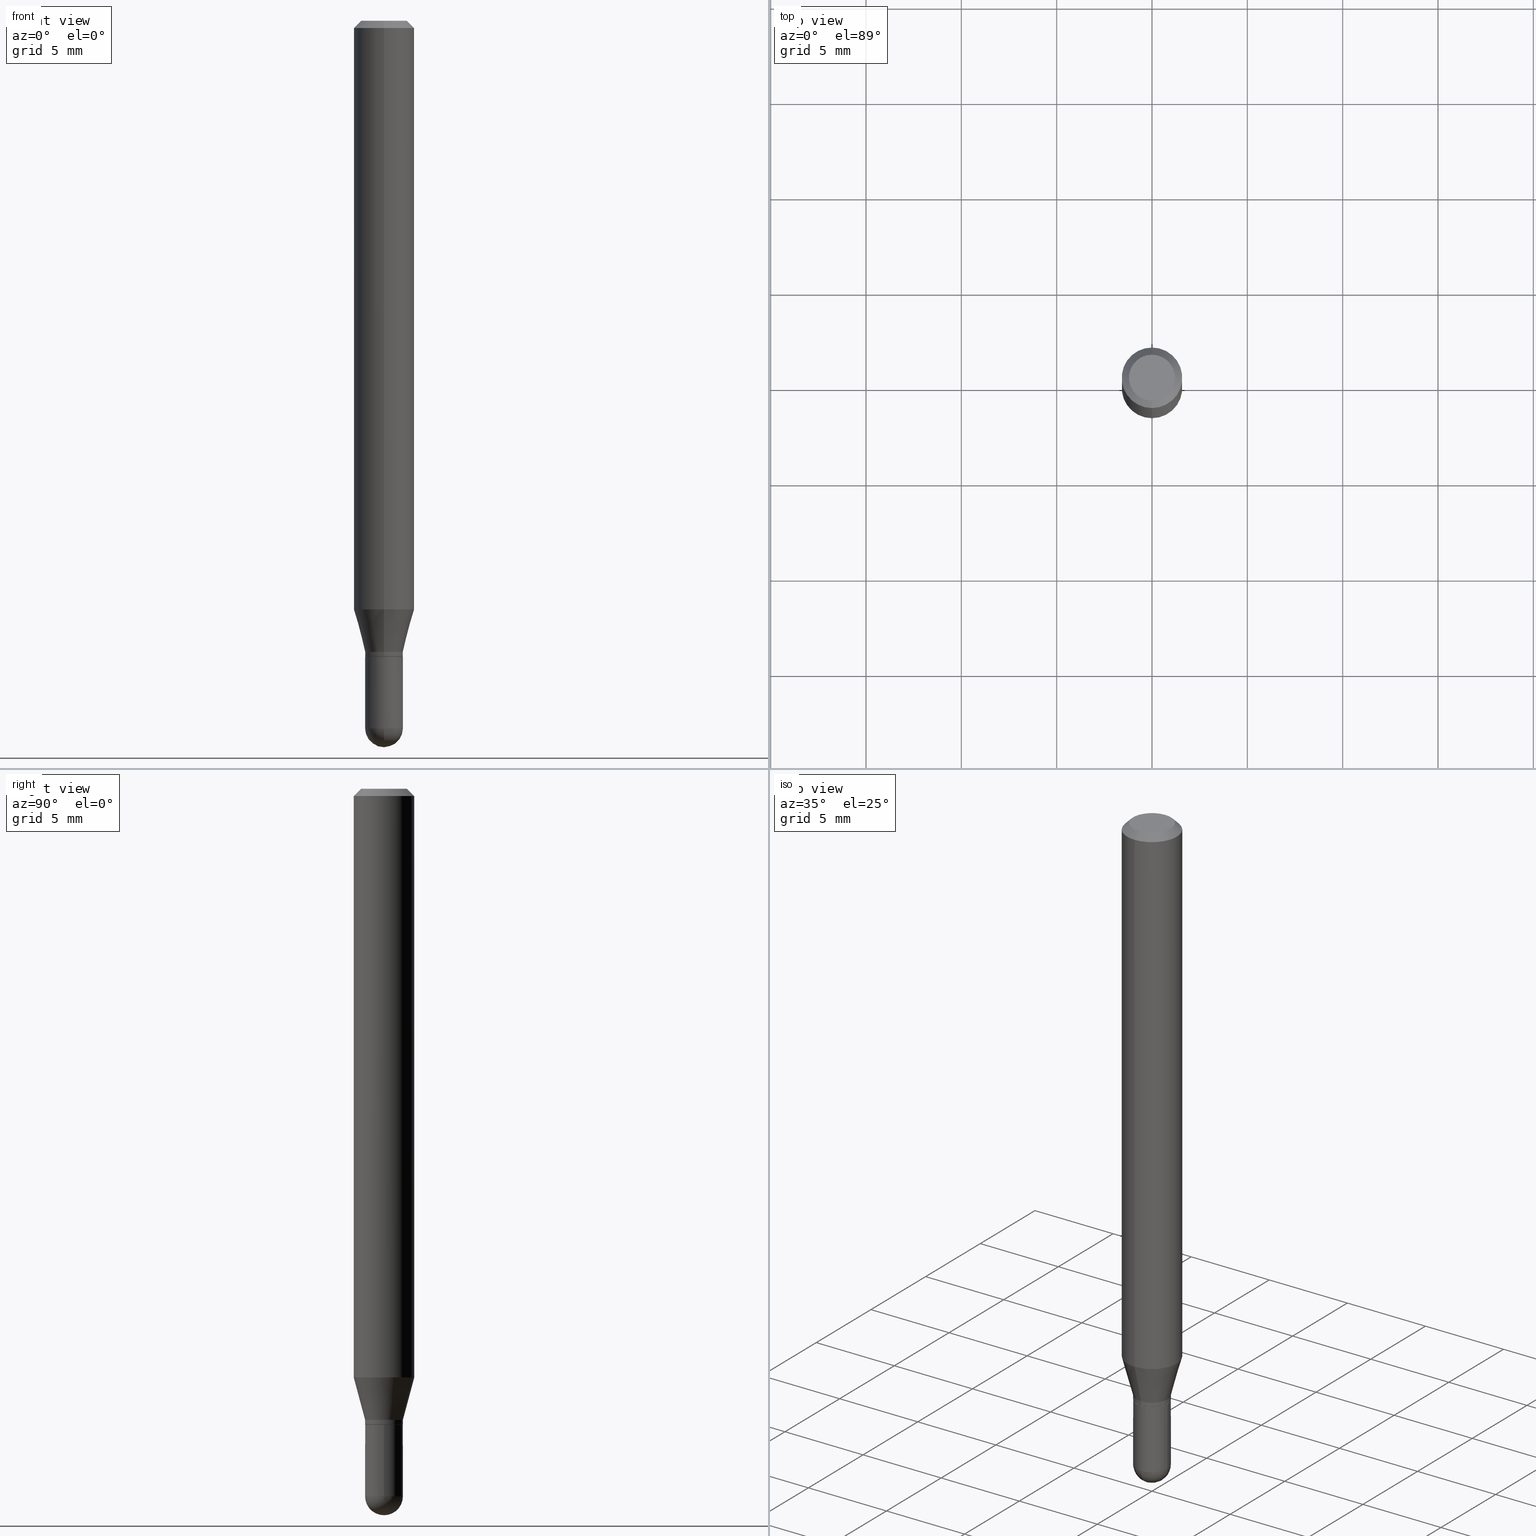
[diagram: canonical four-view strip — front | top / right | iso, engineering-drawing reading convention]
A machine part, canonical four-view strip (front | top / right | iso — engineering-drawing reading convention). The complete STEP part file that produces these views, byte-faithful:
ISO-10303-21;
HEADER;
FILE_DESCRIPTION (( 'STEP AP203' ),
    '1' );
FILE_NAME ('30035.STEP',
    '2024-03-08T15:16:37',
    ( '' ),
    ( '' ),
    'SwSTEP 2.0',
    'SolidWorks 2023',
    '' );
FILE_SCHEMA (( 'CONFIG_CONTROL_DESIGN' ));
ENDSEC;

DATA;
#1 = APPROVAL_PERSON_ORGANIZATION ( #248, #194, #250 ) ;
#2 = LINE ( 'NONE', #89, #34 ) ;
#3 = DIRECTION ( 'NONE',  ( 6.982962677686266711E-15, 1.000000000000000000, 0.000000000000000000 ) ) ;
#4 = DIRECTION ( 'NONE',  ( -6.982962677686265133E-15, -1.000000000000000000, 0.000000000000000000 ) ) ;
#5 = CARTESIAN_POINT ( 'NONE',  ( -2.726846925636162763E-16, -0.03905000000000447002, -1.302999999999999936 ) ) ;
#6 = ADVANCED_FACE ( 'NONE', ( #418 ), #76, .T. ) ;
#7 = ORIENTED_EDGE ( 'NONE', *, *, #81, .F. ) ;
#8 = DIRECTION ( 'NONE',  ( 4.937700262164548042E-15, 0.7071067811865451302, -0.7071067811865499042 ) ) ;
#9 = AXIS2_PLACEMENT_3D ( 'NONE', #395, #201, #356 ) ;
#10 = CLOSED_SHELL ( 'NONE', ( #318, #252, #365, #281, #259, #6, #501, #41, #337, #341, #260, #25 ) ) ;
#11 = APPROVAL ( #331, 'UNSPECIFIED' ) ;
#12 = ORIENTED_EDGE ( 'NONE', *, *, #104, .T. ) ;
#13 = DATE_AND_TIME ( #182, #58 ) ;
#14 = VERTEX_POINT ( 'NONE', #400 ) ;
#15 = PERSON_AND_ORGANIZATION_ROLE ( 'creator' ) ;
#16 = EDGE_LOOP ( 'NONE', ( #271, #440 ) ) ;
#17 = COORDINATED_UNIVERSAL_TIME_OFFSET ( 5, 0, .BEHIND. ) ;
#18 = APPROVAL_PERSON_ORGANIZATION ( #138, #168, #55 ) ;
#19 = ORIENTED_EDGE ( 'NONE', *, *, #108, .T. ) ;
#20 = COORDINATED_UNIVERSAL_TIME_OFFSET ( 5, 0, .BEHIND. ) ;
#21 = EDGE_LOOP ( 'NONE', ( #140, #377, #352, #110, #145 ) ) ;
#22 = EDGE_CURVE ( 'NONE', #217, #14, #111, .T. ) ;
#23 = DIRECTION ( 'NONE',  ( -2.445435285253421028E-29, 3.491529342725254773E-15, 1.000000000000000000 ) ) ;
#24 = EDGE_LOOP ( 'NONE', ( #239, #12, #258, #338 ) ) ;
#25 = ADVANCED_FACE ( 'NONE', ( #196 ), #391, .T. ) ;
#26 = DIRECTION ( 'NONE',  ( -6.982962677686266711E-15, -1.000000000000000000, 3.491529342725255562E-15 ) ) ;
#27 = AXIS2_PLACEMENT_3D ( 'NONE', #160, #238, #3 ) ;
#28 = VECTOR ( 'NONE', #227, 39.37007874015748143 ) ;
#29 = CARTESIAN_POINT ( 'NONE',  ( 3.186402176685208399E-29, -4.549462733571007534E-15, -1.302999999999999936 ) ) ;
#30 = CARTESIAN_POINT ( 'NONE',  ( 0.000000000000000000, 0.000000000000000000, 0.000000000000000000 ) ) ;
#31 = ADVANCED_BREP_SHAPE_REPRESENTATION ( '30035', ( #496, #332, #75 ), #237 ) ;
#32 = CC_DESIGN_DATE_AND_TIME_ASSIGNMENT ( #442, #103, ( #325 ) ) ;
#33 = CARTESIAN_POINT ( 'NONE',  ( 4.440892098500920012E-16, 0.06249999999999572564, -1.215483408562509915 ) ) ;
#34 = VECTOR ( 'NONE', #48, 39.37007874015748143 ) ;
#35 = DIRECTION ( 'NONE',  ( -2.445435285253421308E-29, 3.491529342725255167E-15, 1.000000000000000000 ) ) ;
#36 = VECTOR ( 'NONE', #355, 39.37007874015748143 ) ;
#37 = DIRECTION ( 'NONE',  ( -6.982962677686265133E-15, -1.000000000000000000, 0.000000000000000000 ) ) ;
#38 = ORIENTED_EDGE ( 'NONE', *, *, #274, .T. ) ;
#39 = CARTESIAN_POINT ( 'NONE',  ( 3.569368228036930558E-29, -5.105661907733563837E-15, -1.460950000000000193 ) ) ;
#40 = CARTESIAN_POINT ( 'NONE',  ( 3.668152927880133994E-31, -5.237294014087885586E-17, -0.01500000000000000812 ) ) ;
#41 = ADVANCED_FACE ( 'NONE', ( #235 ), #124, .T. ) ;
#42 = ORIENTED_EDGE ( 'NONE', *, *, #99, .F. ) ;
#43 = CARTESIAN_POINT ( 'NONE',  ( 3.569368228036930558E-29, -5.105661907733563837E-15, -1.460950000000000193 ) ) ;
#44 = CYLINDRICAL_SURFACE ( 'NONE', #301, 0.03905000000000000832 ) ;
#45 = EDGE_LOOP ( 'NONE', ( #209, #396, #105, #354 ) ) ;
#46 = DIRECTION ( 'NONE',  ( 6.982962677686265922E-15, 1.000000000000000000, -3.483106191921935554E-15 ) ) ;
#47 = AXIS2_PLACEMENT_3D ( 'NONE', #305, #116, #422 ) ;
#48 = DIRECTION ( 'NONE',  ( -2.445435285253421308E-29, 3.491529342725254773E-15, 1.000000000000000000 ) ) ;
#49 = ORIENTED_EDGE ( 'NONE', *, *, #485, .T. ) ;
#50 = DIRECTION ( 'NONE',  ( -6.982962677686265133E-15, -1.000000000000000000, 3.491529342725254773E-15 ) ) ;
#51 = EDGE_CURVE ( 'NONE', #371, #87, #245, .T. ) ;
#52 = CARTESIAN_POINT ( 'NONE',  ( 2.726846925636807657E-16, 0.03904999999999541477, -1.313000000000000167 ) ) ;
#53 = LINE ( 'NONE', #202, #36 ) ;
#54 = EDGE_CURVE ( 'NONE', #411, #137, #285, .T. ) ;
#55 = APPROVAL_ROLE ( '' ) ;
#56 = ORIENTED_EDGE ( 'NONE', *, *, #511, .T. ) ;
#57 = AXIS2_PLACEMENT_3D ( 'NONE', #149, #221, #502 ) ;
#58 = LOCAL_TIME ( 10, 16, 37.00000000000000000, #20 ) ;
#59 = AXIS2_PLACEMENT_3D ( 'NONE', #134, #284, #438 ) ;
#60 = APPLICATION_CONTEXT ( 'configuration controlled 3d designs of mechanical parts and assemblies' ) ;
#61 = EDGE_LOOP ( 'NONE', ( #19, #297, #177, #249 ) ) ;
#62 = APPROVAL_STATUS ( 'not_yet_approved' ) ;
#63 = ORIENTED_EDGE ( 'NONE', *, *, #157, .F. ) ;
#64 = PERSON_AND_ORGANIZATION_ROLE ( 'creator' ) ;
#65 = EDGE_LOOP ( 'NONE', ( #415, #219, #243, #333 ) ) ;
#66 = PERSON_AND_ORGANIZATION ( #115, #315 ) ;
#67 = CIRCLE ( 'NONE', #406, 0.03905000000000000832 ) ;
#68 = VERTEX_POINT ( 'NONE', #353 ) ;
#69 = CIRCLE ( 'NONE', #222, 0.03905000000000000832 ) ;
#70 = CARTESIAN_POINT ( 'NONE',  ( 3.210856529537742007E-29, -4.584378026998260520E-15, -1.313000000000000167 ) ) ;
#71 = DIRECTION ( 'NONE',  ( -6.982962677686265133E-15, -1.000000000000000000, 0.000000000000000000 ) ) ;
#72 = DIRECTION ( 'NONE',  ( -1.807323732225327773E-15, -0.2588190451025178529, 0.9659258262890690894 ) ) ;
#73 = DIRECTION ( 'NONE',  ( -2.445435285253421308E-29, 3.491529342725255167E-15, 1.000000000000000000 ) ) ;
#74 = CARTESIAN_POINT ( 'NONE',  ( -0.03905000000000000832, 2.774669383143191817E-16, -1.920844152744540988E-30 ) ) ;
#75 = AXIS2_PLACEMENT_3D ( 'NONE', #289, #213, #180 ) ;
#76 = CONICAL_SURFACE ( 'NONE', #185, 0.03904999999999992505, 0.2617993877991499074 ) ;
#77 = CARTESIAN_POINT ( 'NONE',  ( -2.726846925636169666E-16, -0.03905000000000464350, -1.312500000000000222 ) ) ;
#78 = FACE_OUTER_BOUND ( 'NONE', #443, .T. ) ;
#79 = CIRCLE ( 'NONE', #458, 0.06250000000000000000 ) ;
#80 = DIRECTION ( 'NONE',  ( 2.445435285253421308E-29, -3.491529342725255167E-15, -1.000000000000000000 ) ) ;
#81 = EDGE_CURVE ( 'NONE', #68, #430, #69, .T. ) ;
#82 = AXIS2_PLACEMENT_3D ( 'NONE', #218, #347, #114 ) ;
#83 = CARTESIAN_POINT ( 'NONE',  ( -0.03905000000000000138, -4.565130391627653569E-15, -1.313000000000000167 ) ) ;
#84 = CARTESIAN_POINT ( 'NONE',  ( 2.972386015938861663E-29, -4.243895986591712384E-15, -1.215483408562509693 ) ) ;
#85 = PLANE ( 'NONE',  #270 ) ;
#86 = EDGE_CURVE ( 'NONE', #166, #454, #294, .T. ) ;
#87 = VERTEX_POINT ( 'NONE', #426 ) ;
#88 = DIRECTION ( 'NONE',  ( -7.105427357601000281E-15, -1.000000000000000000, 0.000000000000000000 ) ) ;
#89 = CARTESIAN_POINT ( 'NONE',  ( -2.726846925636481266E-16, -0.03904999999999992505, 1.363442208334209384E-16 ) ) ;
#90 = SECURITY_CLASSIFICATION ( '', '', #136 ) ;
#91 = ORIENTED_EDGE ( 'NONE', *, *, #403, .F. ) ;
#92 = DIRECTION ( 'NONE',  ( -1.000000000000000000, 7.105427357601001070E-15, -4.926315508542082329E-29 ) ) ;
#93 = ORIENTED_EDGE ( 'NONE', *, *, #346, .T. ) ;
#94 = COORDINATED_UNIVERSAL_TIME_OFFSET ( 5, 0, .BEHIND. ) ;
#95 = ORIENTED_EDGE ( 'NONE', *, *, #152, .F. ) ;
#96 = CONICAL_SURFACE ( 'NONE', #405, 0.03904999999999992505, 0.2617993877991499074 ) ;
#97 = CC_DESIGN_APPROVAL ( #11, ( #90 ) ) ;
#98 = DATE_AND_TIME ( #373, #427 ) ;
#99 = EDGE_CURVE ( 'NONE', #411, #447, #433, .T. ) ;
#100 = VECTOR ( 'NONE', #477, 39.37007874015748143 ) ;
#101 = ORIENTED_EDGE ( 'NONE', *, *, #410, .F. ) ;
#102 = UNCERTAINTY_MEASURE_WITH_UNIT (LENGTH_MEASURE( 1.000000000000000082E-05 ), #414, 'distance_accuracy_value', 'NONE');
#103 = DATE_TIME_ROLE ( 'creation_date' ) ;
#104 = EDGE_CURVE ( 'NONE', #328, #296, #279, .T. ) ;
#105 = ORIENTED_EDGE ( 'NONE', *, *, #470, .T. ) ;
#106 = DATE_AND_TIME ( #335, #498 ) ;
#107 = EDGE_LOOP ( 'NONE', ( #367, #49, #7, #330 ) ) ;
#108 = EDGE_CURVE ( 'NONE', #254, #244, #272, .T. ) ;
#109 = EDGE_CURVE ( 'NONE', #244, #87, #53, .T. ) ;
#110 = ORIENTED_EDGE ( 'NONE', *, *, #283, .T. ) ;
#111 = CIRCLE ( 'NONE', #207, 0.03904999999999998750 ) ;
#112 = CC_DESIGN_PERSON_AND_ORGANIZATION_ASSIGNMENT ( #66, #363, ( #186 ) ) ;
#113 = CARTESIAN_POINT ( 'NONE',  ( 2.756905814749505827E-16, 0.03854999999999541432, -1.313000000000000167 ) ) ;
#114 = DIRECTION ( 'NONE',  ( -6.982962677686265133E-15, -1.000000000000000000, 0.000000000000000000 ) ) ;
#115 = PERSON ( 'UNSPECIFIED', 'UNSPECIFIED', 'UNSPECIFIED', ('UNSPECIFIED'), ('UNSPECIFIED'), ('UNSPECIFIED') ) ;
#116 = DIRECTION ( 'NONE',  ( 2.445435285253421308E-29, -3.491529342725255167E-15, -1.000000000000000000 ) ) ;
#117 = CC_DESIGN_APPROVAL ( #168, ( #325 ) ) ;
#118 = CARTESIAN_POINT ( 'NONE',  ( 4.440892098500924943E-16, 0.06249999999999993755, -0.01500000000000022669 ) ) ;
#119 = PRODUCT ( '30035', '30035', '', ( #409 ) ) ;
#120 = DIRECTION ( 'NONE',  ( -2.445468806185136597E-29, 3.491481338843145583E-15, 1.000000000000000000 ) ) ;
#121 = EDGE_CURVE ( 'NONE', #137, #296, #359, .T. ) ;
#122 = CARTESIAN_POINT ( 'NONE',  ( 3.186402176685208399E-29, -4.549462733571007534E-15, -1.302999999999999936 ) ) ;
#123 = DIRECTION ( 'NONE',  ( -2.445468806185136597E-29, 3.491481338843145583E-15, 1.000000000000000000 ) ) ;
#124 = CONICAL_SURFACE ( 'NONE', #504, 0.06250000000000000000, 0.7853981633974483900 ) ;
#125 = ORIENTED_EDGE ( 'NONE', *, *, #121, .T. ) ;
#126 = FACE_OUTER_BOUND ( 'NONE', #174, .T. ) ;
#127 = AXIS2_PLACEMENT_3D ( 'NONE', #368, #329, #178 ) ;
#128 = DIRECTION ( 'NONE',  ( -6.982962677686265922E-15, -1.000000000000000000, 3.491529342725254773E-15 ) ) ;
#129 = DIRECTION ( 'NONE',  ( -1.000000000000000000, 6.982962677686265922E-15, -4.883557194083112901E-29 ) ) ;
#130 = DIRECTION ( 'NONE',  ( -2.445435285253421308E-29, 3.491529342725255167E-15, 1.000000000000000000 ) ) ;
#131 = DIRECTION ( 'NONE',  ( -2.445468806185136597E-29, 3.491481338843145583E-15, 1.000000000000000000 ) ) ;
#132 = CARTESIAN_POINT ( 'NONE',  ( 0.000000000000000000, 0.000000000000000000, 0.000000000000000000 ) ) ;
#133 = EDGE_CURVE ( 'NONE', #166, #328, #309, .T. ) ;
#134 = CARTESIAN_POINT ( 'NONE',  ( 3.210856529537742007E-29, -4.584378026998260520E-15, -1.313000000000000167 ) ) ;
#135 = DIRECTION ( 'NONE',  ( 6.982962677686265922E-15, 1.000000000000000000, 0.000000000000000000 ) ) ;
#136 = SECURITY_CLASSIFICATION_LEVEL ( 'unclassified' ) ;
#137 = VERTEX_POINT ( 'NONE', #472 ) ;
#138 = PERSON_AND_ORGANIZATION ( #115, #315 ) ;
#139 = ORIENTED_EDGE ( 'NONE', *, *, #226, .F. ) ;
#140 = ORIENTED_EDGE ( 'NONE', *, *, #322, .F. ) ;
#141 = CARTESIAN_POINT ( 'NONE',  ( -0.03905000000000000832, -4.565130391627653569E-15, -1.460950000000000193 ) ) ;
#142 = CALENDAR_DATE ( 2024, 8, 3 ) ;
#143 = CIRCLE ( 'NONE', #127, 0.06250000000000000000 ) ;
#144 = EDGE_LOOP ( 'NONE', ( #183, #56 ) ) ;
#145 = ORIENTED_EDGE ( 'NONE', *, *, #511, .F. ) ;
#146 = ADVANCED_FACE ( 'NONE', ( #126 ), #394, .T. ) ;
#147 = CARTESIAN_POINT ( 'NONE',  ( 3.186402176685208399E-29, -4.549462733571007534E-15, -1.302999999999999936 ) ) ;
#148 = LINE ( 'NONE', #300, #483 ) ;
#149 = CARTESIAN_POINT ( 'NONE',  ( 3.572707652396175485E-29, -5.100879661982893620E-15, -1.460950000000000193 ) ) ;
#150 = VECTOR ( 'NONE', #154, 39.37007874015748143 ) ;
#151 = FACE_OUTER_BOUND ( 'NONE', #486, .T. ) ;
#152 = EDGE_CURVE ( 'NONE', #251, #328, #448, .T. ) ;
#153 = PLANE ( 'NONE',  #205 ) ;
#154 = DIRECTION ( 'NONE',  ( -4.937700262164674260E-15, -0.7071067811865632269, 0.7071067811865319186 ) ) ;
#155 = AXIS2_PLACEMENT_3D ( 'NONE', #236, #478, #37 ) ;
#156 = DIRECTION ( 'NONE',  ( 2.445435285253421028E-29, -3.491529342725254773E-15, -1.000000000000000000 ) ) ;
#157 = EDGE_CURVE ( 'NONE', #454, #251, #148, .T. ) ;
#158 = CARTESIAN_POINT ( 'NONE',  ( 3.572707652396175485E-29, -5.100879661982893620E-15, -1.460950000000000193 ) ) ;
#159 = CARTESIAN_POINT ( 'NONE',  ( 2.774669383143503417E-16, 0.03904999999999537313, -1.302999999999999936 ) ) ;
#160 = CARTESIAN_POINT ( 'NONE',  ( 3.569368228036930558E-29, -5.105661907733563837E-15, -1.460950000000000193 ) ) ;
#161 = AXIS2_PLACEMENT_3D ( 'NONE', #233, #479, #50 ) ;
#162 = VERTEX_POINT ( 'NONE', #141 ) ;
#163 = DIRECTION ( 'NONE',  ( -6.982962677686266711E-15, -1.000000000000000000, 3.491529342725255562E-15 ) ) ;
#164 = VECTOR ( 'NONE', #379, 39.37007874015748143 ) ;
#165 = CARTESIAN_POINT ( 'NONE',  ( 3.210856529537742007E-29, -4.584378026998260520E-15, -1.313000000000000167 ) ) ;
#166 = VERTEX_POINT ( 'NONE', #212 ) ;
#167 = CARTESIAN_POINT ( 'NONE',  ( 3.668152927880133994E-31, -5.237294014087885586E-17, -0.01500000000000000812 ) ) ;
#168 = APPROVAL ( #216, 'UNSPECIFIED' ) ;
#169 = FACE_OUTER_BOUND ( 'NONE', #282, .T. ) ;
#170 = CARTESIAN_POINT ( 'NONE',  ( 4.440892098500625669E-16, 0.06250000000000000000, -2.182205839203284233E-16 ) ) ;
#171 = DIRECTION ( 'NONE',  ( -2.445435285253421308E-29, 3.491529342725255167E-15, 1.000000000000000000 ) ) ;
#172 = ORIENTED_EDGE ( 'NONE', *, *, #421, .T. ) ;
#173 = AXIS2_PLACEMENT_3D ( 'NONE', #30, #187, #307 ) ;
#174 = EDGE_LOOP ( 'NONE', ( #484, #374, #204, #276 ) ) ;
#175 = EDGE_CURVE ( 'NONE', #296, #447, #143, .T. ) ;
#176 = ORIENTED_EDGE ( 'NONE', *, *, #351, .F. ) ;
#177 = ORIENTED_EDGE ( 'NONE', *, *, #51, .F. ) ;
#178 = DIRECTION ( 'NONE',  ( -6.982962677686265922E-15, -1.000000000000000000, 3.483106191921935554E-15 ) ) ;
#179 = VECTOR ( 'NONE', #436, 39.37007874015748143 ) ;
#180 = DIRECTION ( 'NONE',  ( 1.000000000000000000, 0.000000000000000000, 0.000000000000000000 ) ) ;
#181 = ORIENTED_EDGE ( 'NONE', *, *, #175, .T. ) ;
#182 = CALENDAR_DATE ( 2024, 8, 3 ) ;
#183 = ORIENTED_EDGE ( 'NONE', *, *, #226, .T. ) ;
#184 = DIRECTION ( 'NONE',  ( -6.982962677686265922E-15, -1.000000000000000000, 3.491529342725254773E-15 ) ) ;
#185 = AXIS2_PLACEMENT_3D ( 'NONE', #147, #494, #71 ) ;
#186 = PRODUCT_DEFINITION_FORMATION_WITH_SPECIFIED_SOURCE ( 'ANY', '', #119, .NOT_KNOWN. ) ;
#187 = DIRECTION ( 'NONE',  ( -2.445468806185136597E-29, 3.491481338843145583E-15, 1.000000000000000000 ) ) ;
#188 = DIRECTION ( 'NONE',  ( -2.445435285253421308E-29, 3.491529342725255167E-15, 1.000000000000000000 ) ) ;
#189 = CC_DESIGN_PERSON_AND_ORGANIZATION_ASSIGNMENT ( #253, #404, ( #90 ) ) ;
#190 = CARTESIAN_POINT ( 'NONE',  ( -4.364351673553621857E-16, -0.06250000000000427436, -1.215483408562509471 ) ) ;
#191 = DIRECTION ( 'NONE',  ( -6.982962677686265133E-15, -1.000000000000000000, 0.000000000000000000 ) ) ;
#192 = AXIS2_PLACEMENT_3D ( 'NONE', #158, #123, #428 ) ;
#193 = DIRECTION ( 'NONE',  ( -2.445435285253421308E-29, 3.491529342725255167E-15, 1.000000000000000000 ) ) ;
#194 = APPROVAL ( #62, 'UNSPECIFIED' ) ;
#195 = DIRECTION ( 'NONE',  ( -2.445435285253421308E-29, 3.491529342725255167E-15, 1.000000000000000000 ) ) ;
#196 = FACE_OUTER_BOUND ( 'NONE', #437, .T. ) ;
#197 = CARTESIAN_POINT ( 'NONE',  ( -3.773273898774340269E-16, -0.04749999999999999362, 1.569896043720187075E-16 ) ) ;
#198 = VERTEX_POINT ( 'NONE', #334 ) ;
#199 = CARTESIAN_POINT ( 'NONE',  ( 2.972386015938861663E-29, -4.243895986591712384E-15, -1.215483408562509693 ) ) ;
#200 = DIRECTION ( 'NONE',  ( 1.000000000000000000, -6.982962677686265133E-15, 0.000000000000000000 ) ) ;
#201 = DIRECTION ( 'NONE',  ( -2.445435285253421308E-29, 3.491529342725255167E-15, 1.000000000000000000 ) ) ;
#202 = CARTESIAN_POINT ( 'NONE',  ( 2.739142246355506265E-16, 0.03854999999999541432, -1.313000000000000167 ) ) ;
#203 = PERSON_AND_ORGANIZATION ( #115, #315 ) ;
#204 = ORIENTED_EDGE ( 'NONE', *, *, #497, .F. ) ;
#205 = AXIS2_PLACEMENT_3D ( 'NONE', #70, #23, #184 ) ;
#206 = LOCAL_TIME ( 10, 16, 37.00000000000000000, #291 ) ;
#207 = AXIS2_PLACEMENT_3D ( 'NONE', #39, #92, #88 ) ;
#208 = COORDINATED_UNIVERSAL_TIME_OFFSET ( 5, 0, .BEHIND. ) ;
#209 = ORIENTED_EDGE ( 'NONE', *, *, #54, .F. ) ;
#210 = APPROVAL_DATE_TIME ( #98, #168 ) ;
#211 = ORIENTED_EDGE ( 'NONE', *, *, #410, .T. ) ;
#212 = CARTESIAN_POINT ( 'NONE',  ( 3.607780740822213933E-16, 0.03904999999999537313, -1.302999999999999936 ) ) ;
#213 = DIRECTION ( 'NONE',  ( 0.000000000000000000, 0.000000000000000000, 1.000000000000000000 ) ) ;
#214 = ORIENTED_EDGE ( 'NONE', *, *, #109, .F. ) ;
#215 = CIRCLE ( 'NONE', #192, 0.03905000000000000832 ) ;
#216 = APPROVAL_STATUS ( 'not_yet_approved' ) ;
#217 = VERTEX_POINT ( 'NONE', #490 ) ;
#218 = CARTESIAN_POINT ( 'NONE',  ( 3.210856529537742007E-29, -4.584378026998260520E-15, -1.313000000000000167 ) ) ;
#219 = ORIENTED_EDGE ( 'NONE', *, *, #86, .T. ) ;
#220 = CARTESIAN_POINT ( 'NONE',  ( 3.210900542521084585E-29, -4.584314997901050598E-15, -1.313000000000000167 ) ) ;
#221 = DIRECTION ( 'NONE',  ( -2.445468806185136597E-29, 3.491481338843145583E-15, 1.000000000000000000 ) ) ;
#222 = AXIS2_PLACEMENT_3D ( 'NONE', #277, #131, #200 ) ;
#223 = AXIS2_PLACEMENT_3D ( 'NONE', #165, #171, #480 ) ;
#224 = CARTESIAN_POINT ( 'NONE',  ( 3.210856529537742007E-29, -4.584378026998260520E-15, -1.313000000000000167 ) ) ;
#225 = LINE ( 'NONE', #257, #150 ) ;
#226 = EDGE_CURVE ( 'NONE', #198, #457, #302, .T. ) ;
#227 = DIRECTION ( 'NONE',  ( -2.445468806185136877E-29, 3.491481338843145188E-15, 1.000000000000000000 ) ) ;
#228 = CC_DESIGN_PERSON_AND_ORGANIZATION_ASSIGNMENT ( #203, #15, ( #186 ) ) ;
#229 = ORIENTED_EDGE ( 'NONE', *, *, #51, .T. ) ;
#230 = CARTESIAN_POINT ( 'NONE',  ( 3.209633811895115467E-29, -4.582632262326897949E-15, -1.312500000000000222 ) ) ;
#231 = DIRECTION ( 'NONE',  ( -1.000000000000000000, 6.982962677686265922E-15, -4.883557194083112901E-29 ) ) ;
#232 = ORIENTED_EDGE ( 'NONE', *, *, #81, .T. ) ;
#233 = CARTESIAN_POINT ( 'NONE',  ( 0.000000000000000000, 0.000000000000000000, 0.000000000000000000 ) ) ;
#234 = DIRECTION ( 'NONE',  ( -2.445468806185136597E-29, 3.491481338843145583E-15, 1.000000000000000000 ) ) ;
#235 = FACE_OUTER_BOUND ( 'NONE', #364, .T. ) ;
#236 = CARTESIAN_POINT ( 'NONE',  ( 3.209633811895115467E-29, -4.582632262326897949E-15, -1.312500000000000222 ) ) ;
#237 =( GEOMETRIC_REPRESENTATION_CONTEXT ( 3 ) GLOBAL_UNCERTAINTY_ASSIGNED_CONTEXT ( ( #102 ) ) GLOBAL_UNIT_ASSIGNED_CONTEXT ( ( #414, #412, #370 ) ) REPRESENTATION_CONTEXT ( 'NONE', 'WORKASPACE' ) );
#238 = DIRECTION ( 'NONE',  ( 1.000000000000000000, -6.982962677686265922E-15, 4.883557194083112340E-29 ) ) ;
#239 = ORIENTED_EDGE ( 'NONE', *, *, #152, .T. ) ;
#240 = DIRECTION ( 'NONE',  ( -2.445435285253421308E-29, 3.491529342725255167E-15, 1.000000000000000000 ) ) ;
#241 = ADVANCED_FACE ( 'NONE', ( #378 ), #266, .T. ) ;
#242 = PERSON_AND_ORGANIZATION ( #115, #315 ) ;
#243 = ORIENTED_EDGE ( 'NONE', *, *, #157, .T. ) ;
#244 = VERTEX_POINT ( 'NONE', #113 ) ;
#245 = CIRCLE ( 'NONE', #445, 0.03904999999999992505 ) ;
#246 = AXIS2_PLACEMENT_3D ( 'NONE', #40, #193, #324 ) ;
#247 = AXIS2_PLACEMENT_3D ( 'NONE', #122, #509, #4 ) ;
#248 = PERSON_AND_ORGANIZATION ( #115, #315 ) ;
#249 = ORIENTED_EDGE ( 'NONE', *, *, #274, .F. ) ;
#250 = APPROVAL_ROLE ( '' ) ;
#251 = VERTEX_POINT ( 'NONE', #190 ) ;
#252 = ADVANCED_FACE ( 'NONE', ( #466 ), #362, .T. ) ;
#253 = PERSON_AND_ORGANIZATION ( #115, #315 ) ;
#254 = VERTEX_POINT ( 'NONE', #376 ) ;
#255 = CONICAL_SURFACE ( 'NONE', #47, 0.06250000000000000000, 0.7853981633974483900 ) ;
#256 = CONICAL_SURFACE ( 'NONE', #459, 0.03855000000000000093, 0.7853981633974739252 ) ;
#257 = CARTESIAN_POINT ( 'NONE',  ( -2.691932112247734171E-16, -0.03855000000000458060, -1.313000000000000167 ) ) ;
#258 = ORIENTED_EDGE ( 'NONE', *, *, #470, .F. ) ;
#259 = ADVANCED_FACE ( 'NONE', ( #344 ), #96, .T. ) ;
#260 = ADVANCED_FACE ( 'NONE', ( #348 ), #256, .T. ) ;
#261 = PLANE ( 'NONE',  #316 ) ;
#262 = DIRECTION ( 'NONE',  ( -6.982962677686265922E-15, -1.000000000000000000, 4.370956789862821150E-15 ) ) ;
#263 = CC_DESIGN_DATE_AND_TIME_ASSIGNMENT ( #13, #286, ( #90 ) ) ;
#264 = CARTESIAN_POINT ( 'NONE',  ( 2.166176212509684537E-46, -3.092810451006163325E-32, -8.858039407430904597E-18 ) ) ;
#265 = LINE ( 'NONE', #460, #408 ) ;
#266 = CYLINDRICAL_SURFACE ( 'NONE', #173, 0.03905000000000000832 ) ;
#267 = LINE ( 'NONE', #321, #179 ) ;
#268 = CIRCLE ( 'NONE', #57, 0.03905000000000000832 ) ;
#269 = FACE_OUTER_BOUND ( 'NONE', #144, .T. ) ;
#270 = AXIS2_PLACEMENT_3D ( 'NONE', #52, #434, #350 ) ;
#271 = ORIENTED_EDGE ( 'NONE', *, *, #108, .F. ) ;
#272 = CIRCLE ( 'NONE', #59, 0.03855000000000000093 ) ;
#273 = CARTESIAN_POINT ( 'NONE',  ( 4.364351673553919652E-16, 0.06249999999999995143, -0.01500000000000022669 ) ) ;
#274 = EDGE_CURVE ( 'NONE', #254, #371, #225, .T. ) ;
#275 = CARTESIAN_POINT ( 'NONE',  ( 3.210900542521084585E-29, -4.584314997901050598E-15, -1.313000000000000167 ) ) ;
#276 = ORIENTED_EDGE ( 'NONE', *, *, #346, .F. ) ;
#277 = CARTESIAN_POINT ( 'NONE',  ( 3.572707652396175485E-29, -5.100879661982893620E-15, -1.460950000000000193 ) ) ;
#278 = FACE_OUTER_BOUND ( 'NONE', #311, .T. ) ;
#279 = LINE ( 'NONE', #170, #499 ) ;
#280 = DIRECTION ( 'NONE',  ( -2.445468806185136597E-29, 3.491481338843145583E-15, 1.000000000000000000 ) ) ;
#281 = ADVANCED_FACE ( 'NONE', ( #464 ), #461, .T. ) ;
#282 = EDGE_LOOP ( 'NONE', ( #407, #290, #172, #489 ) ) ;
#283 = EDGE_CURVE ( 'NONE', #68, #198, #265, .T. ) ;
#284 = DIRECTION ( 'NONE',  ( -2.445435285253421308E-29, 3.491529342725255167E-15, 1.000000000000000000 ) ) ;
#285 = CIRCLE ( 'NONE', #389, 0.04749999999999999362 ) ;
#286 = DATE_TIME_ROLE ( 'classification_date' ) ;
#287 = ORIENTED_EDGE ( 'NONE', *, *, #54, .T. ) ;
#288 = CC_DESIGN_PERSON_AND_ORGANIZATION_ASSIGNMENT ( #444, #64, ( #325 ) ) ;
#289 = CARTESIAN_POINT ( 'NONE',  ( 0.000000000000000000, 0.000000000000000000, 0.000000000000000000 ) ) ;
#290 = ORIENTED_EDGE ( 'NONE', *, *, #468, .T. ) ;
#291 = COORDINATED_UNIVERSAL_TIME_OFFSET ( 5, 0, .BEHIND. ) ;
#292 = ORIENTED_EDGE ( 'NONE', *, *, #351, .T. ) ;
#293 = CIRCLE ( 'NONE', #416, 0.03905000000000000138 ) ;
#294 = CIRCLE ( 'NONE', #247, 0.03904999999999992505 ) ;
#295 = APPLICATION_PROTOCOL_DEFINITION ( 'international standard', 'config_control_design', 1994, #449 ) ;
#296 = VERTEX_POINT ( 'NONE', #118 ) ;
#297 = ORIENTED_EDGE ( 'NONE', *, *, #109, .T. ) ;
#298 = APPROVAL_DATE_TIME ( #439, #11 ) ;
#299 = ORIENTED_EDGE ( 'NONE', *, *, #463, .T. ) ;
#300 = CARTESIAN_POINT ( 'NONE',  ( -2.726846925636162763E-16, -0.03905000000000447002, -1.302999999999999936 ) ) ;
#301 = AXIS2_PLACEMENT_3D ( 'NONE', #392, #234, #319 ) ;
#302 = CIRCLE ( 'NONE', #327, 0.03905000000000000138 ) ;
#303 = CARTESIAN_POINT ( 'NONE',  ( 0.000000000000000000, 0.000000000000000000, 0.000000000000000000 ) ) ;
#304 = DIRECTION ( 'NONE',  ( 6.982962677686265922E-15, 1.000000000000000000, -3.491529342725254773E-15 ) ) ;
#305 = CARTESIAN_POINT ( 'NONE',  ( 3.668152927880133994E-31, -5.237294014087885586E-17, -0.01500000000000000812 ) ) ;
#306 = CC_DESIGN_APPROVAL ( #194, ( #186 ) ) ;
#307 = DIRECTION ( 'NONE',  ( 1.000000000000000000, -6.982962677686266711E-15, 4.876176775795935232E-29 ) ) ;
#308 = LINE ( 'NONE', #419, #164 ) ;
#309 = LINE ( 'NONE', #159, #343 ) ;
#310 = CARTESIAN_POINT ( 'NONE',  ( -4.364351673553912750E-16, -0.06250000000000005551, -0.01499999999999979128 ) ) ;
#311 = EDGE_LOOP ( 'NONE', ( #93, #413, #139, #451, #232 ) ) ;
#312 = DIRECTION ( 'NONE',  ( 1.839019923739597554E-15, 0.2588190451025245697, 0.9659258262890670910 ) ) ;
#313 = CIRCLE ( 'NONE', #155, 0.03904999999999992505 ) ;
#314 = CARTESIAN_POINT ( 'NONE',  ( 3.572707652396175485E-29, -5.100879661982893620E-15, -1.460950000000000193 ) ) ;
#315 = ORGANIZATION ( 'UNSPECIFIED', 'UNSPECIFIED', '' ) ;
#316 = AXIS2_PLACEMENT_3D ( 'NONE', #384, #156, #304 ) ;
#317 = DIRECTION ( 'NONE',  ( -6.982962677686265133E-15, -1.000000000000000000, 0.000000000000000000 ) ) ;
#318 = ADVANCED_FACE ( 'NONE', ( #78 ), #417, .T. ) ;
#319 = DIRECTION ( 'NONE',  ( 1.000000000000000000, -6.982962677686266711E-15, 4.876176775795935232E-29 ) ) ;
#320 = CARTESIAN_POINT ( 'NONE',  ( 2.166176212509684537E-46, -3.092810451006163325E-32, -8.858039407430904597E-18 ) ) ;
#321 = CARTESIAN_POINT ( 'NONE',  ( -4.364351673553916201E-16, -0.06250000000000000000, 2.182205839203284233E-16 ) ) ;
#322 = EDGE_CURVE ( 'NONE', #162, #457, #383, .T. ) ;
#323 = DIRECTION ( 'NONE',  ( -2.445435285253421308E-29, 3.491529342725254773E-15, 1.000000000000000000 ) ) ;
#324 = DIRECTION ( 'NONE',  ( -6.982962677686265922E-15, -1.000000000000000000, 3.483106191921935554E-15 ) ) ;
#325 = PRODUCT_DEFINITION ( 'UNKNOWN', '', #186, #452 ) ;
#326 = CIRCLE ( 'NONE', #223, 0.03855000000000000093 ) ;
#327 = AXIS2_PLACEMENT_3D ( 'NONE', #220, #493, #455 ) ;
#328 = VERTEX_POINT ( 'NONE', #33 ) ;
#329 = DIRECTION ( 'NONE',  ( -2.445435285253421308E-29, 3.491529342725255167E-15, 1.000000000000000000 ) ) ;
#330 = ORIENTED_EDGE ( 'NONE', *, *, #441, .F. ) ;
#331 = APPROVAL_STATUS ( 'not_yet_approved' ) ;
#332 = MANIFOLD_SOLID_BREP ( 'Body-Move/Copy2[2]', #10 ) ;
#333 = ORIENTED_EDGE ( 'NONE', *, *, #468, .F. ) ;
#334 = CARTESIAN_POINT ( 'NONE',  ( 0.03905000000000000138, -4.856999690464699711E-15, -1.313000000000000167 ) ) ;
#335 = CALENDAR_DATE ( 2024, 8, 3 ) ;
#336 = ORIENTED_EDGE ( 'NONE', *, *, #375, .T. ) ;
#337 = ADVANCED_FACE ( 'NONE', ( #151 ), #261, .F. ) ;
#338 = ORIENTED_EDGE ( 'NONE', *, *, #421, .F. ) ;
#339 = EDGE_CURVE ( 'NONE', #87, #166, #308, .T. ) ;
#340 = DIRECTION ( 'NONE',  ( -6.982962677686265922E-15, -1.000000000000000000, 3.491529342725254773E-15 ) ) ;
#341 = ADVANCED_FACE ( 'NONE', ( #469 ), #153, .F. ) ;
#342 = CIRCLE ( 'NONE', #473, 0.04749999999999999362 ) ;
#343 = VECTOR ( 'NONE', #312, 39.37007874015748854 ) ;
#344 = FACE_OUTER_BOUND ( 'NONE', #492, .T. ) ;
#345 = DIRECTION ( 'NONE',  ( -2.445435285253421308E-29, 3.491529342725255167E-15, 1.000000000000000000 ) ) ;
#346 = EDGE_CURVE ( 'NONE', #430, #162, #268, .T. ) ;
#347 = DIRECTION ( 'NONE',  ( -2.445435285253421308E-29, 3.491529342725255167E-15, 1.000000000000000000 ) ) ;
#348 = FACE_OUTER_BOUND ( 'NONE', #390, .T. ) ;
#349 = AXIS2_PLACEMENT_3D ( 'NONE', #43, #129, #135 ) ;
#350 = DIRECTION ( 'NONE',  ( -1.000000000000000000, 6.982962677686265922E-15, -4.876176775795935793E-29 ) ) ;
#351 = EDGE_CURVE ( 'NONE', #137, #411, #342, .T. ) ;
#352 = ORIENTED_EDGE ( 'NONE', *, *, #441, .T. ) ;
#353 = CARTESIAN_POINT ( 'NONE',  ( 0.03905000000000000832, -5.115282022505621222E-15, -1.460950000000000193 ) ) ;
#354 = ORIENTED_EDGE ( 'NONE', *, *, #121, .F. ) ;
#355 = DIRECTION ( 'NONE',  ( 5.024295867788190974E-15, 0.7071067811865681119, 0.7071067811865270336 ) ) ;
#356 = DIRECTION ( 'NONE',  ( -6.982962677686265133E-15, -1.000000000000000000, 0.000000000000000000 ) ) ;
#357 = SPHERICAL_SURFACE ( 'NONE', #465, 0.03904999999999998750 ) ;
#358 = CARTESIAN_POINT ( 'NONE',  ( 2.726846925636844142E-16, 0.03904999999999489435, -1.460950000000000193 ) ) ;
#359 = LINE ( 'NONE', #273, #512 ) ;
#360 = CIRCLE ( 'NONE', #246, 0.06250000000000000000 ) ;
#361 = ORIENTED_EDGE ( 'NONE', *, *, #339, .F. ) ;
#362 = CONICAL_SURFACE ( 'NONE', #82, 0.03855000000000000093, 0.7853981633974739252 ) ;
#363 = PERSON_AND_ORGANIZATION_ROLE ( 'design_supplier' ) ;
#364 = EDGE_LOOP ( 'NONE', ( #42, #176, #125, #181 ) ) ;
#365 = ADVANCED_FACE ( 'NONE', ( #420 ), #255, .T. ) ;
#366 = APPROVAL_DATE_TIME ( #106, #194 ) ;
#367 = ORIENTED_EDGE ( 'NONE', *, *, #22, .F. ) ;
#368 = CARTESIAN_POINT ( 'NONE',  ( 3.668152927880133994E-31, -5.237294014087885586E-17, -0.01500000000000000812 ) ) ;
#369 = CC_DESIGN_PERSON_AND_ORGANIZATION_ASSIGNMENT ( #401, #453, ( #119 ) ) ;
#370 =( NAMED_UNIT ( * ) SI_UNIT ( $, .STERADIAN. ) SOLID_ANGLE_UNIT ( ) );
#371 = VERTEX_POINT ( 'NONE', #77 ) ;
#372 = APPROVAL_PERSON_ORGANIZATION ( #242, #11, #488 ) ;
#373 = CALENDAR_DATE ( 2024, 8, 3 ) ;
#374 = ORIENTED_EDGE ( 'NONE', *, *, #22, .T. ) ;
#375 = EDGE_CURVE ( 'NONE', #87, #371, #313, .T. ) ;
#376 = CARTESIAN_POINT ( 'NONE',  ( -2.691932112247734171E-16, -0.03855000000000458060, -1.313000000000000167 ) ) ;
#377 = ORIENTED_EDGE ( 'NONE', *, *, #497, .T. ) ;
#378 = FACE_OUTER_BOUND ( 'NONE', #21, .T. ) ;
#379 = DIRECTION ( 'NONE',  ( -2.445435285253421308E-29, 3.491529342725254773E-15, 1.000000000000000000 ) ) ;
#380 = CLOSED_SHELL ( 'NONE', ( #467, #146, #386, #424, #241 ) ) ;
#381 = CC_DESIGN_SECURITY_CLASSIFICATION ( #90, ( #186 ) ) ;
#382 = AXIS2_PLACEMENT_3D ( 'NONE', #84, #35, #262 ) ;
#383 = LINE ( 'NONE', #74, #28 ) ;
#384 = CARTESIAN_POINT ( 'NONE',  ( 3.316907271900976096E-16, 0.04749999999999999362, -1.702766634831650498E-16 ) ) ;
#385 = DIRECTION ( 'NONE',  ( -2.445435285253421308E-29, 3.491529342725255167E-15, 1.000000000000000000 ) ) ;
#386 = ADVANCED_FACE ( 'NONE', ( #269 ), #85, .F. ) ;
#387 = LOCAL_TIME ( 10, 16, 37.00000000000000000, #208 ) ;
#388 =( LENGTH_UNIT ( ) NAMED_UNIT ( * ) SI_UNIT ( $, .METRE. ) );
#389 = AXIS2_PLACEMENT_3D ( 'NONE', #320, #195, #163 ) ;
#390 = EDGE_LOOP ( 'NONE', ( #214, #299, #38, #432 ) ) ;
#391 = CYLINDRICAL_SURFACE ( 'NONE', #161, 0.03904999999999992505 ) ;
#392 = CARTESIAN_POINT ( 'NONE',  ( 0.000000000000000000, 0.000000000000000000, 0.000000000000000000 ) ) ;
#393 = ORIENTED_EDGE ( 'NONE', *, *, #339, .T. ) ;
#394 = SPHERICAL_SURFACE ( 'NONE', #349, 0.03904999999999998750 ) ;
#395 = CARTESIAN_POINT ( 'NONE',  ( 3.186402176685208399E-29, -4.549462733571007534E-15, -1.302999999999999936 ) ) ;
#396 = ORIENTED_EDGE ( 'NONE', *, *, #99, .T. ) ;
#397 = DIRECTION ( 'NONE',  ( 6.982962677686265922E-15, 1.000000000000000000, 0.000000000000000000 ) ) ;
#398 = ORIENTED_EDGE ( 'NONE', *, *, #86, .F. ) ;
#399 = DIRECTION ( 'NONE',  ( 1.000000000000000000, -6.982962677686266711E-15, 0.000000000000000000 ) ) ;
#400 = CARTESIAN_POINT ( 'NONE',  ( -2.774669383142833871E-16, -0.03905000000000510146, -1.460950000000000193 ) ) ;
#401 = PERSON_AND_ORGANIZATION ( #115, #315 ) ;
#402 = ORIENTED_EDGE ( 'NONE', *, *, #403, .T. ) ;
#403 = EDGE_CURVE ( 'NONE', #371, #454, #2, .T. ) ;
#404 = PERSON_AND_ORGANIZATION_ROLE ( 'classification_officer' ) ;
#405 = AXIS2_PLACEMENT_3D ( 'NONE', #29, #188, #191 ) ;
#406 = AXIS2_PLACEMENT_3D ( 'NONE', #314, #120, #425 ) ;
#407 = ORIENTED_EDGE ( 'NONE', *, *, #104, .F. ) ;
#408 = VECTOR ( 'NONE', #500, 39.37007874015748143 ) ;
#409 = MECHANICAL_CONTEXT ( 'NONE', #449, 'mechanical' ) ;
#410 = EDGE_CURVE ( 'NONE', #454, #166, #481, .T. ) ;
#411 = VERTEX_POINT ( 'NONE', #197 ) ;
#412 =( NAMED_UNIT ( * ) PLANE_ANGLE_UNIT ( ) SI_UNIT ( $, .RADIAN. ) );
#413 = ORIENTED_EDGE ( 'NONE', *, *, #322, .T. ) ;
#414 =( CONVERSION_BASED_UNIT ( 'INCH', #491 ) LENGTH_UNIT ( ) NAMED_UNIT ( #462 ) );
#415 = ORIENTED_EDGE ( 'NONE', *, *, #133, .F. ) ;
#416 = AXIS2_PLACEMENT_3D ( 'NONE', #275, #280, #399 ) ;
#417 = CYLINDRICAL_SURFACE ( 'NONE', #476, 0.03904999999999992505 ) ;
#418 = FACE_OUTER_BOUND ( 'NONE', #65, .T. ) ;
#419 = CARTESIAN_POINT ( 'NONE',  ( 2.774669383143184914E-16, 0.03904999999999992505, -1.363442208334209384E-16 ) ) ;
#420 = FACE_OUTER_BOUND ( 'NONE', #45, .T. ) ;
#421 = EDGE_CURVE ( 'NONE', #251, #447, #267, .T. ) ;
#422 = DIRECTION ( 'NONE',  ( 6.982962677686265922E-15, 1.000000000000000000, -3.483106191921935554E-15 ) ) ;
#423 = CARTESIAN_POINT ( 'NONE',  ( 0.000000000000000000, 0.000000000000000000, 0.000000000000000000 ) ) ;
#424 = ADVANCED_FACE ( 'NONE', ( #471 ), #357, .T. ) ;
#425 = DIRECTION ( 'NONE',  ( 1.000000000000000000, -6.982962677686265133E-15, 0.000000000000000000 ) ) ;
#426 = CARTESIAN_POINT ( 'NONE',  ( 2.774669383143496514E-16, 0.03904999999999519966, -1.312500000000000222 ) ) ;
#427 = LOCAL_TIME ( 10, 16, 37.00000000000000000, #94 ) ;
#428 = DIRECTION ( 'NONE',  ( 1.000000000000000000, -6.982962677686265133E-15, 0.000000000000000000 ) ) ;
#429 = AXIS2_PLACEMENT_3D ( 'NONE', #423, #505, #340 ) ;
#430 = VERTEX_POINT ( 'NONE', #358 ) ;
#431 = DIRECTION ( 'NONE',  ( -2.445435285253421308E-29, 3.491529342725255167E-15, 1.000000000000000000 ) ) ;
#432 = ORIENTED_EDGE ( 'NONE', *, *, #375, .F. ) ;
#433 = LINE ( 'NONE', #507, #100 ) ;
#434 = DIRECTION ( 'NONE',  ( 2.438088387897960049E-29, -3.491481338843145188E-15, -1.000000000000000000 ) ) ;
#435 = PRODUCT_RELATED_PRODUCT_CATEGORY ( 'detail', '', ( #119 ) ) ;
#436 = DIRECTION ( 'NONE',  ( -2.445435285253421308E-29, 3.491529342725254773E-15, 1.000000000000000000 ) ) ;
#437 = EDGE_LOOP ( 'NONE', ( #361, #336, #402, #398 ) ) ;
#438 = DIRECTION ( 'NONE',  ( -6.982962677686265133E-15, -1.000000000000000000, 0.000000000000000000 ) ) ;
#439 = DATE_AND_TIME ( #482, #387 ) ;
#440 = ORIENTED_EDGE ( 'NONE', *, *, #463, .F. ) ;
#441 = EDGE_CURVE ( 'NONE', #14, #68, #215, .T. ) ;
#442 = DATE_AND_TIME ( #142, #206 ) ;
#443 = EDGE_LOOP ( 'NONE', ( #229, #393, #101, #91 ) ) ;
#444 = PERSON_AND_ORGANIZATION ( #115, #315 ) ;
#445 = AXIS2_PLACEMENT_3D ( 'NONE', #230, #240, #317 ) ;
#446 = CIRCLE ( 'NONE', #27, 0.03904999999999998750 ) ;
#447 = VERTEX_POINT ( 'NONE', #310 ) ;
#448 = CIRCLE ( 'NONE', #382, 0.06250000000000000000 ) ;
#449 = APPLICATION_CONTEXT ( 'configuration controlled 3d designs of mechanical parts and assemblies' ) ;
#450 = APPLICATION_PROTOCOL_DEFINITION ( 'international standard', 'config_control_design', 1994, #60 ) ;
#451 = ORIENTED_EDGE ( 'NONE', *, *, #283, .F. ) ;
#452 = DESIGN_CONTEXT ( 'detailed design', #60, 'design' ) ;
#453 = PERSON_AND_ORGANIZATION_ROLE ( 'design_owner' ) ;
#454 = VERTEX_POINT ( 'NONE', #5 ) ;
#455 = DIRECTION ( 'NONE',  ( 1.000000000000000000, -6.982962677686266711E-15, 0.000000000000000000 ) ) ;
#456 = SHAPE_DEFINITION_REPRESENTATION ( #510, #31 ) ;
#457 = VERTEX_POINT ( 'NONE', #83 ) ;
#458 = AXIS2_PLACEMENT_3D ( 'NONE', #199, #130, #508 ) ;
#459 = AXIS2_PLACEMENT_3D ( 'NONE', #224, #345, #503 ) ;
#460 = CARTESIAN_POINT ( 'NONE',  ( 0.03905000000000000832, -2.726846925636487675E-16, 1.904147030948313202E-30 ) ) ;
#461 = CYLINDRICAL_SURFACE ( 'NONE', #429, 0.06250000000000000000 ) ;
#462 = DIMENSIONAL_EXPONENTS ( 1.000000000000000000, 0.000000000000000000, 0.000000000000000000, 0.000000000000000000, 0.000000000000000000, 0.000000000000000000, 0.000000000000000000 ) ;
#463 = EDGE_CURVE ( 'NONE', #244, #254, #326, .T. ) ;
#464 = FACE_OUTER_BOUND ( 'NONE', #24, .T. ) ;
#465 = AXIS2_PLACEMENT_3D ( 'NONE', #506, #231, #397 ) ;
#466 = FACE_OUTER_BOUND ( 'NONE', #61, .T. ) ;
#467 = ADVANCED_FACE ( 'NONE', ( #278 ), #44, .T. ) ;
#468 = EDGE_CURVE ( 'NONE', #328, #251, #79, .T. ) ;
#469 = FACE_OUTER_BOUND ( 'NONE', #16, .T. ) ;
#470 = EDGE_CURVE ( 'NONE', #447, #296, #360, .T. ) ;
#471 = FACE_OUTER_BOUND ( 'NONE', #107, .T. ) ;
#472 = CARTESIAN_POINT ( 'NONE',  ( 3.840629472727447874E-16, 0.04749999999999999362, -1.747056831868805136E-16 ) ) ;
#473 = AXIS2_PLACEMENT_3D ( 'NONE', #264, #73, #26 ) ;
#474 = AXIS2_PLACEMENT_3D ( 'NONE', #132, #431, #128 ) ;
#475 = CYLINDRICAL_SURFACE ( 'NONE', #474, 0.06250000000000000000 ) ;
#476 = AXIS2_PLACEMENT_3D ( 'NONE', #303, #385, #495 ) ;
#477 = DIRECTION ( 'NONE',  ( -4.851104656540964275E-15, -0.7071067811865500152, -0.7071067811865450192 ) ) ;
#478 = DIRECTION ( 'NONE',  ( -2.445435285253421308E-29, 3.491529342725255167E-15, 1.000000000000000000 ) ) ;
#479 = DIRECTION ( 'NONE',  ( -2.445435285253421308E-29, 3.491529342725255167E-15, 1.000000000000000000 ) ) ;
#480 = DIRECTION ( 'NONE',  ( -6.982962677686265133E-15, -1.000000000000000000, 0.000000000000000000 ) ) ;
#481 = CIRCLE ( 'NONE', #9, 0.03904999999999992505 ) ;
#482 = CALENDAR_DATE ( 2024, 8, 3 ) ;
#483 = VECTOR ( 'NONE', #72, 39.37007874015748143 ) ;
#484 = ORIENTED_EDGE ( 'NONE', *, *, #485, .F. ) ;
#485 = EDGE_CURVE ( 'NONE', #217, #430, #446, .T. ) ;
#486 = EDGE_LOOP ( 'NONE', ( #292, #287 ) ) ;
#487 = ORIENTED_EDGE ( 'NONE', *, *, #133, .T. ) ;
#488 = APPROVAL_ROLE ( '' ) ;
#489 = ORIENTED_EDGE ( 'NONE', *, *, #175, .F. ) ;
#490 = CARTESIAN_POINT ( 'NONE',  ( 3.666533497098082712E-29, -5.239613131140053285E-15, -1.500000000000000222 ) ) ;
#491 = LENGTH_MEASURE_WITH_UNIT ( LENGTH_MEASURE( 0.02539999999999999897 ), #388 );
#492 = EDGE_LOOP ( 'NONE', ( #211, #487, #95, #63 ) ) ;
#493 = DIRECTION ( 'NONE',  ( -2.445468806185136597E-29, 3.491481338843145583E-15, 1.000000000000000000 ) ) ;
#494 = DIRECTION ( 'NONE',  ( -2.445435285253421308E-29, 3.491529342725255167E-15, 1.000000000000000000 ) ) ;
#495 = DIRECTION ( 'NONE',  ( -6.982962677686265133E-15, -1.000000000000000000, 3.491529342725254773E-15 ) ) ;
#496 = MANIFOLD_SOLID_BREP ( 'Body-Move/Copy2[1]', #380 ) ;
#497 = EDGE_CURVE ( 'NONE', #162, #14, #67, .T. ) ;
#498 = LOCAL_TIME ( 10, 16, 37.00000000000000000, #17 ) ;
#499 = VECTOR ( 'NONE', #323, 39.37007874015748143 ) ;
#500 = DIRECTION ( 'NONE',  ( -2.445468806185136877E-29, 3.491481338843145188E-15, 1.000000000000000000 ) ) ;
#501 = ADVANCED_FACE ( 'NONE', ( #169 ), #475, .T. ) ;
#502 = DIRECTION ( 'NONE',  ( 1.000000000000000000, -6.982962677686265133E-15, 0.000000000000000000 ) ) ;
#503 = DIRECTION ( 'NONE',  ( -6.982962677686265133E-15, -1.000000000000000000, 0.000000000000000000 ) ) ;
#504 = AXIS2_PLACEMENT_3D ( 'NONE', #167, #80, #46 ) ;
#505 = DIRECTION ( 'NONE',  ( -2.445435285253421308E-29, 3.491529342725255167E-15, 1.000000000000000000 ) ) ;
#506 = CARTESIAN_POINT ( 'NONE',  ( 3.569368228036930558E-29, -5.105661907733563837E-15, -1.460950000000000193 ) ) ;
#507 = CARTESIAN_POINT ( 'NONE',  ( -4.287811248607203282E-16, -0.06250000000000005551, -0.01499999999999979128 ) ) ;
#508 = DIRECTION ( 'NONE',  ( -6.982962677686265922E-15, -1.000000000000000000, 4.370956789862821150E-15 ) ) ;
#509 = DIRECTION ( 'NONE',  ( -2.445435285253421308E-29, 3.491529342725255167E-15, 1.000000000000000000 ) ) ;
#510 = PRODUCT_DEFINITION_SHAPE ( 'NONE', 'NONE',  #325 ) ;
#511 = EDGE_CURVE ( 'NONE', #457, #198, #293, .T. ) ;
#512 = VECTOR ( 'NONE', #8, 39.37007874015748143 ) ;
ENDSEC;
END-ISO-10303-21;
